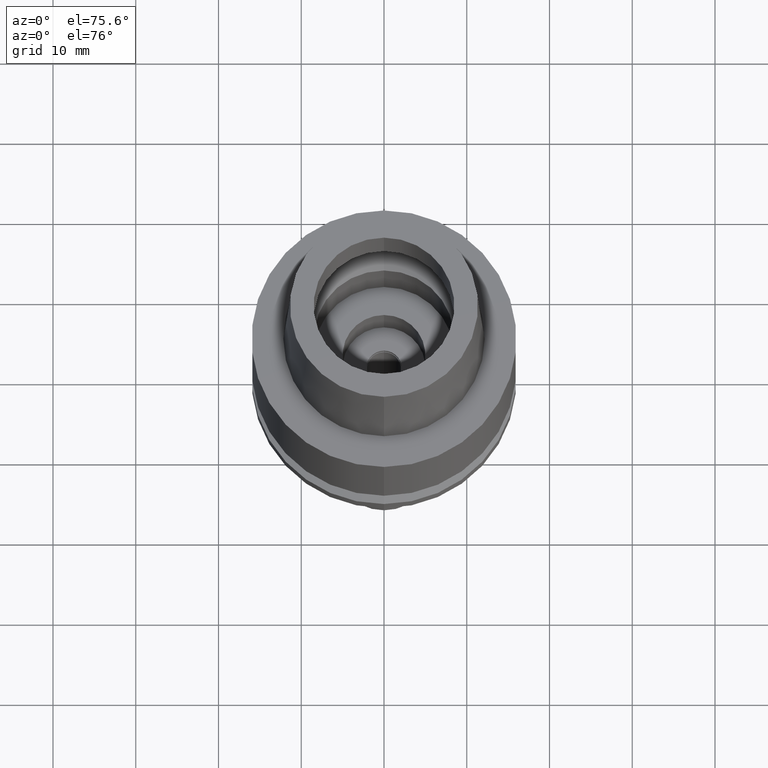
[diagram: clean part render]
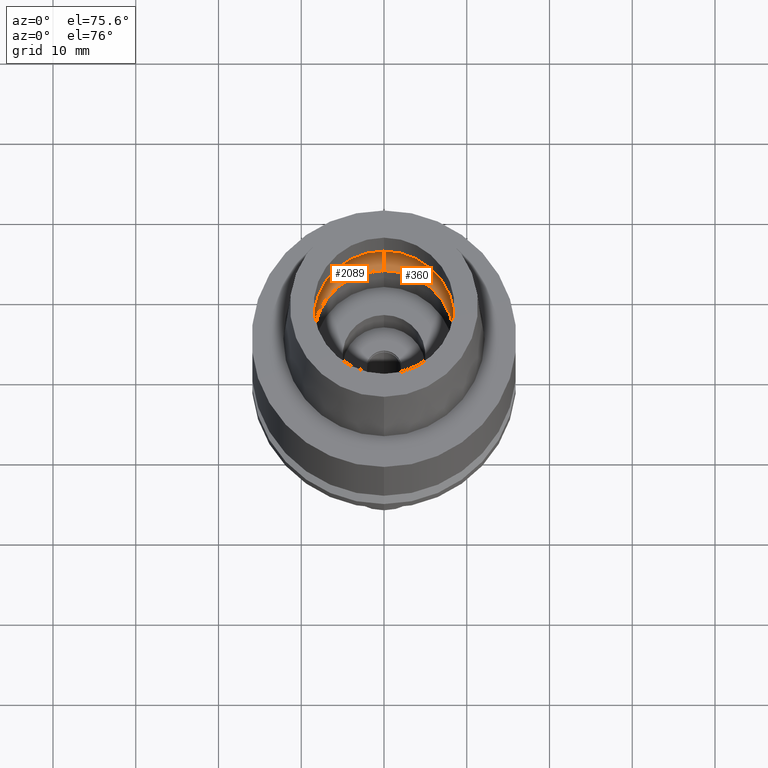
[diagram: same view with one multi-face feature highlighted, each face labeled with its STEP entity id]
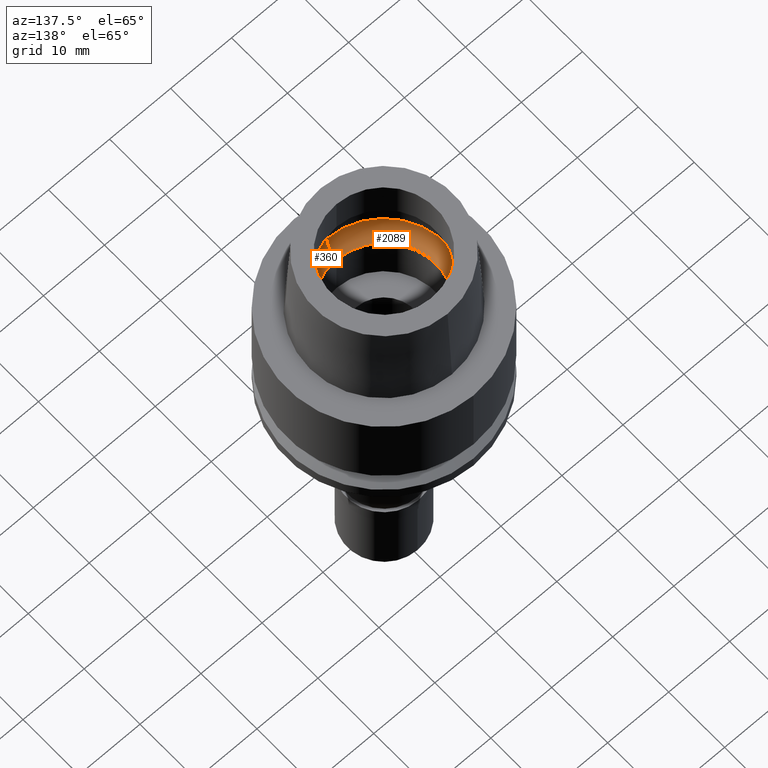
[diagram: same view with one multi-face feature highlighted, each face labeled with its STEP entity id]
A machine part, auxiliary view. The highlighted faces form ONE feature: a constant-radius fillet chain: 2 tangent blend faces with common blend radius 4 mm. The faces share edges in the B-rep.
A second angle (auxiliary view) of the same feature is appended — it is thin or edge-on in the first view.
Their STEP definitions:
[1] entity #2089 (Torus):
#80 = CARTESIAN_POINT ( 'NONE',  ( 0.0000000000000000000, -6.250000000000000000, 3.357000000000000206 ) ) ;
#226 = TOROIDAL_SURFACE ( 'NONE', #2530, 6.250000000000000000, 4.000000000000000000 ) ;
#244 = EDGE_CURVE ( 'NONE', #323, #847, #1822, .T. ) ;
#275 = EDGE_CURVE ( 'NONE', #847, #807, #2370, .T. ) ;
#291 = CARTESIAN_POINT ( 'NONE',  ( 0.0000000000000000000, -8.500000000000000000, 0.04981086116925999979 ) ) ;
#297 = CARTESIAN_POINT ( 'NONE',  ( 0.0000000000000000000, 0.0000000000000000000, 3.357000000000000206 ) ) ;
#323 = VERTEX_POINT ( 'NONE', #2153 ) ;
#333 = AXIS2_PLACEMENT_3D ( 'NONE', #1087, #1931, #1970 ) ;
#678 = DIRECTION ( 'NONE',  ( 0.0000000000000000000, -0.5624999999999932276, -0.8267972847076892062 ) ) ;
#746 = DIRECTION ( 'NONE',  ( 0.0000000000000000000, -1.000000000000000000, 0.0000000000000000000 ) ) ;
#790 = CARTESIAN_POINT ( 'NONE',  ( 0.0000000000000000000, 0.0000000000000000000, 3.357000000000000206 ) ) ;
#807 = VERTEX_POINT ( 'NONE', #1518 ) ;
#847 = VERTEX_POINT ( 'NONE', #291 ) ;
#1001 = ORIENTED_EDGE ( 'NONE', *, *, #244, .F. ) ;
#1004 = CIRCLE ( 'NONE', #1133, 3.999999999999999112 ) ;
#1083 = EDGE_CURVE ( 'NONE', #807, #2117, #2681, .T. ) ;
#1087 = CARTESIAN_POINT ( 'NONE',  ( 0.0000000000000000000, 0.0000000000000000000, 0.04981086116925999979 ) ) ;
#1098 = DIRECTION ( 'NONE',  ( 1.000000000000000000, 0.0000000000000000000, 0.0000000000000000000 ) ) ;
#1133 = AXIS2_PLACEMENT_3D ( 'NONE', #1954, #1098, #2351 ) ;
#1246 = AXIS2_PLACEMENT_3D ( 'NONE', #80, #2352, #678 ) ;
#1248 = ORIENTED_EDGE ( 'NONE', *, *, #1474, .T. ) ;
#1474 = EDGE_CURVE ( 'NONE', #323, #2117, #1004, .T. ) ;
#1510 = AXIS2_PLACEMENT_3D ( 'NONE', #790, #2632, #2043 ) ;
#1518 = CARTESIAN_POINT ( 'NONE',  ( 0.0000000000000000000, -10.25000000000000000, 3.357000000000000206 ) ) ;
#1540 = CARTESIAN_POINT ( 'NONE',  ( 0.0000000000000000000, 10.25000000000000000, 3.357000000000000206 ) ) ;
#1822 = CIRCLE ( 'NONE', #333, 8.500000000000000000 ) ;
#1931 = DIRECTION ( 'NONE',  ( 0.0000000000000000000, 0.0000000000000000000, 1.000000000000000000 ) ) ;
#1954 = CARTESIAN_POINT ( 'NONE',  ( 0.0000000000000000000, 6.250000000000000000, 3.357000000000000206 ) ) ;
#1970 = DIRECTION ( 'NONE',  ( 0.0000000000000000000, 1.000000000000000000, 0.0000000000000000000 ) ) ;
#2027 = DIRECTION ( 'NONE',  ( 0.0000000000000000000, 0.0000000000000000000, -1.000000000000000000 ) ) ;
#2043 = DIRECTION ( 'NONE',  ( 0.0000000000000000000, -1.000000000000000000, 0.0000000000000000000 ) ) ;
#2089 = ADVANCED_FACE ( 'NONE', ( #2161 ), #226, .F. ) ;
#2111 = EDGE_LOOP ( 'NONE', ( #2455, #2619, #1001, #1248 ) ) ;
#2117 = VERTEX_POINT ( 'NONE', #1540 ) ;
#2153 = CARTESIAN_POINT ( 'NONE',  ( 0.0000000000000000000, 8.500000000000000000, 0.04981086116925999979 ) ) ;
#2161 = FACE_OUTER_BOUND ( 'NONE', #2111, .T. ) ;
#2351 = DIRECTION ( 'NONE',  ( 0.0000000000000000000, 0.5624999999999932276, -0.8267972847076892062 ) ) ;
#2352 = DIRECTION ( 'NONE',  ( -1.000000000000000000, 0.0000000000000000000, 0.0000000000000000000 ) ) ;
#2370 = CIRCLE ( 'NONE', #1246, 3.999999999999999112 ) ;
#2455 = ORIENTED_EDGE ( 'NONE', *, *, #1083, .F. ) ;
#2530 = AXIS2_PLACEMENT_3D ( 'NONE', #297, #2027, #746 ) ;
#2619 = ORIENTED_EDGE ( 'NONE', *, *, #275, .F. ) ;
#2632 = DIRECTION ( 'NONE',  ( 0.0000000000000000000, 0.0000000000000000000, -1.000000000000000000 ) ) ;
#2681 = CIRCLE ( 'NONE', #1510, 10.25000000000000000 ) ;
[2] entity #360 (Torus):
#80 = CARTESIAN_POINT ( 'NONE',  ( 0.0000000000000000000, -6.250000000000000000, 3.357000000000000206 ) ) ;
#275 = EDGE_CURVE ( 'NONE', #847, #807, #2370, .T. ) ;
#291 = CARTESIAN_POINT ( 'NONE',  ( 0.0000000000000000000, -8.500000000000000000, 0.04981086116925999979 ) ) ;
#293 = CIRCLE ( 'NONE', #985, 8.500000000000000000 ) ;
#323 = VERTEX_POINT ( 'NONE', #2153 ) ;
#360 = ADVANCED_FACE ( 'NONE', ( #1559 ), #2118, .F. ) ;
#575 = DIRECTION ( 'NONE',  ( 0.0000000000000000000, -1.000000000000000000, 0.0000000000000000000 ) ) ;
#588 = DIRECTION ( 'NONE',  ( 0.0000000000000000000, 0.0000000000000000000, -1.000000000000000000 ) ) ;
#622 = ORIENTED_EDGE ( 'NONE', *, *, #1474, .F. ) ;
#638 = EDGE_CURVE ( 'NONE', #847, #323, #293, .T. ) ;
#678 = DIRECTION ( 'NONE',  ( 0.0000000000000000000, -0.5624999999999932276, -0.8267972847076892062 ) ) ;
#694 = EDGE_CURVE ( 'NONE', #2117, #807, #1203, .T. ) ;
#807 = VERTEX_POINT ( 'NONE', #1518 ) ;
#847 = VERTEX_POINT ( 'NONE', #291 ) ;
#889 = DIRECTION ( 'NONE',  ( 0.0000000000000000000, 0.0000000000000000000, -1.000000000000000000 ) ) ;
#928 = EDGE_LOOP ( 'NONE', ( #1683, #1830, #2604, #622 ) ) ;
#985 = AXIS2_PLACEMENT_3D ( 'NONE', #1220, #2073, #1312 ) ;
#1004 = CIRCLE ( 'NONE', #1133, 3.999999999999999112 ) ;
#1098 = DIRECTION ( 'NONE',  ( 1.000000000000000000, 0.0000000000000000000, 0.0000000000000000000 ) ) ;
#1109 = AXIS2_PLACEMENT_3D ( 'NONE', #2463, #588, #575 ) ;
#1133 = AXIS2_PLACEMENT_3D ( 'NONE', #1954, #1098, #2351 ) ;
#1203 = CIRCLE ( 'NONE', #1908, 10.25000000000000000 ) ;
#1220 = CARTESIAN_POINT ( 'NONE',  ( 0.0000000000000000000, 0.0000000000000000000, 0.04981086116925999979 ) ) ;
#1246 = AXIS2_PLACEMENT_3D ( 'NONE', #80, #2352, #678 ) ;
#1312 = DIRECTION ( 'NONE',  ( 0.0000000000000000000, -1.000000000000000000, 0.0000000000000000000 ) ) ;
#1473 = CARTESIAN_POINT ( 'NONE',  ( 0.0000000000000000000, 0.0000000000000000000, 3.357000000000000206 ) ) ;
#1474 = EDGE_CURVE ( 'NONE', #323, #2117, #1004, .T. ) ;
#1518 = CARTESIAN_POINT ( 'NONE',  ( 0.0000000000000000000, -10.25000000000000000, 3.357000000000000206 ) ) ;
#1540 = CARTESIAN_POINT ( 'NONE',  ( 0.0000000000000000000, 10.25000000000000000, 3.357000000000000206 ) ) ;
#1559 = FACE_OUTER_BOUND ( 'NONE', #928, .T. ) ;
#1683 = ORIENTED_EDGE ( 'NONE', *, *, #638, .F. ) ;
#1830 = ORIENTED_EDGE ( 'NONE', *, *, #275, .T. ) ;
#1908 = AXIS2_PLACEMENT_3D ( 'NONE', #1473, #889, #2296 ) ;
#1954 = CARTESIAN_POINT ( 'NONE',  ( 0.0000000000000000000, 6.250000000000000000, 3.357000000000000206 ) ) ;
#2073 = DIRECTION ( 'NONE',  ( 0.0000000000000000000, 0.0000000000000000000, 1.000000000000000000 ) ) ;
#2117 = VERTEX_POINT ( 'NONE', #1540 ) ;
#2118 = TOROIDAL_SURFACE ( 'NONE', #1109, 6.250000000000000000, 4.000000000000000000 ) ;
#2153 = CARTESIAN_POINT ( 'NONE',  ( 0.0000000000000000000, 8.500000000000000000, 0.04981086116925999979 ) ) ;
#2296 = DIRECTION ( 'NONE',  ( 0.0000000000000000000, 1.000000000000000000, 0.0000000000000000000 ) ) ;
#2351 = DIRECTION ( 'NONE',  ( 0.0000000000000000000, 0.5624999999999932276, -0.8267972847076892062 ) ) ;
#2352 = DIRECTION ( 'NONE',  ( -1.000000000000000000, 0.0000000000000000000, 0.0000000000000000000 ) ) ;
#2370 = CIRCLE ( 'NONE', #1246, 3.999999999999999112 ) ;
#2463 = CARTESIAN_POINT ( 'NONE',  ( 0.0000000000000000000, 0.0000000000000000000, 3.357000000000000206 ) ) ;
#2604 = ORIENTED_EDGE ( 'NONE', *, *, #694, .F. ) ;